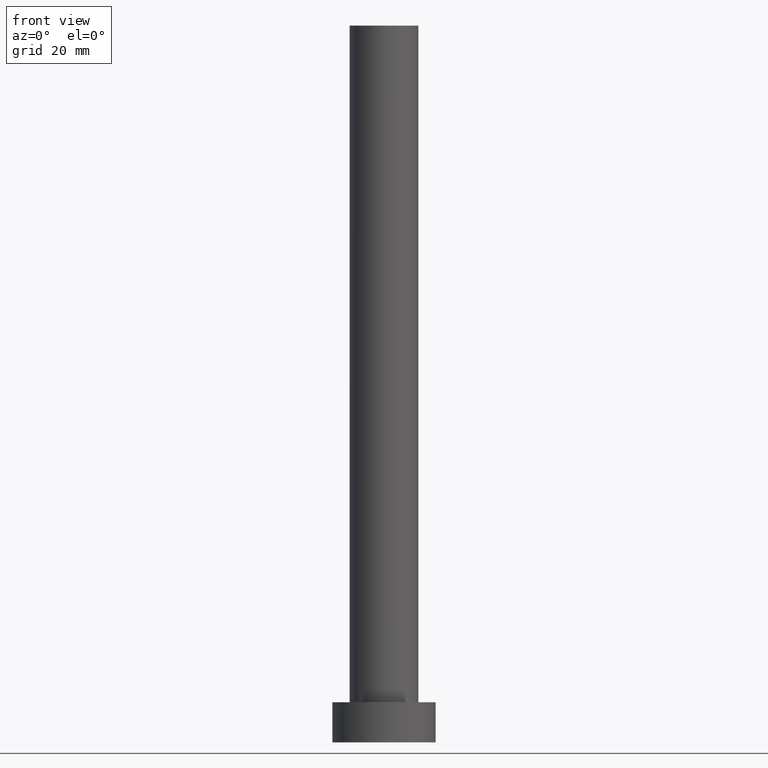
[diagram: clean part render]
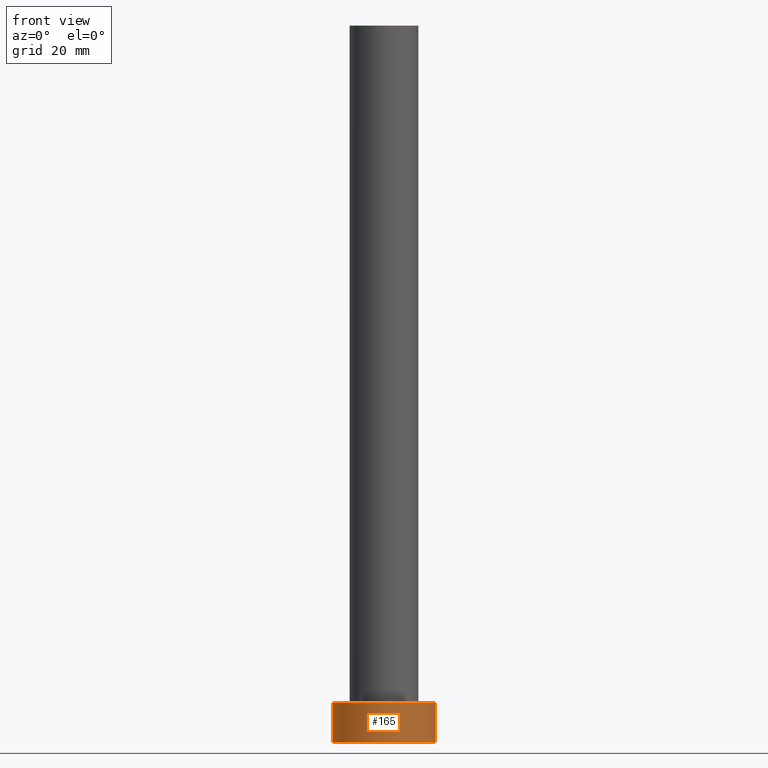
[diagram: same view with one face highlighted and labeled with its STEP entity id]
A machine part, front view. The second image highlights one B-rep face of the part: STEP entity #165.
In plain terms, the highlighted cylindrical surface (partial cylindrical patch) has radius 9 mm, axis along (-0, -0, -1).
Its self-contained STEP definition (entity closure, byte-faithful):
#2 = VECTOR ( 'NONE', #173, 1000.000000000000000 ) ;
#9 = CIRCLE ( 'NONE', #166, 9.000000000000000000 ) ;
#20 = EDGE_CURVE ( 'NONE', #178, #77, #9, .T. ) ;
#29 = CIRCLE ( 'NONE', #78, 9.000000000000000000 ) ;
#41 = CARTESIAN_POINT ( 'NONE',  ( -9.000000000000000000, 0.000000000000000000, 0.000000000000000000 ) ) ;
#52 = CARTESIAN_POINT ( 'NONE',  ( -9.000000000000000000, 0.000000000000000000, 7.000000000000000000 ) ) ;
#60 = VERTEX_POINT ( 'NONE', #111 ) ;
#62 = ORIENTED_EDGE ( 'NONE', *, *, #103, .T. ) ;
#70 = CARTESIAN_POINT ( 'NONE',  ( 0.000000000000000000, 0.000000000000000000, 7.000000000000000000 ) ) ;
#71 = LINE ( 'NONE', #247, #217 ) ;
#77 = VERTEX_POINT ( 'NONE', #170 ) ;
#78 = AXIS2_PLACEMENT_3D ( 'NONE', #101, #95, #219 ) ;
#80 = EDGE_CURVE ( 'NONE', #77, #60, #212, .T. ) ;
#82 = EDGE_LOOP ( 'NONE', ( #200, #183, #62, #249 ) ) ;
#87 = CARTESIAN_POINT ( 'NONE',  ( 0.000000000000000000, 0.000000000000000000, 7.000000000000000000 ) ) ;
#95 = DIRECTION ( 'NONE',  ( 0.000000000000000000, 0.000000000000000000, 1.000000000000000000 ) ) ;
#101 = CARTESIAN_POINT ( 'NONE',  ( 0.000000000000000000, 0.000000000000000000, 0.000000000000000000 ) ) ;
#103 = EDGE_CURVE ( 'NONE', #178, #254, #71, .T. ) ;
#107 = CYLINDRICAL_SURFACE ( 'NONE', #115, 9.000000000000000000 ) ;
#111 = CARTESIAN_POINT ( 'NONE',  ( 9.000000000000000000, 1.102182119232617714E-15, 0.000000000000000000 ) ) ;
#115 = AXIS2_PLACEMENT_3D ( 'NONE', #70, #145, #231 ) ;
#117 = DIRECTION ( 'NONE',  ( 0.000000000000000000, 0.000000000000000000, 1.000000000000000000 ) ) ;
#139 = DIRECTION ( 'NONE',  ( 1.000000000000000000, 0.000000000000000000, 0.000000000000000000 ) ) ;
#145 = DIRECTION ( 'NONE',  ( -0.000000000000000000, -0.000000000000000000, -1.000000000000000000 ) ) ;
#147 = DIRECTION ( 'NONE',  ( -0.000000000000000000, -0.000000000000000000, -1.000000000000000000 ) ) ;
#165 = ADVANCED_FACE ( 'NONE', ( #235 ), #107, .T. ) ;
#166 = AXIS2_PLACEMENT_3D ( 'NONE', #87, #117, #139 ) ;
#170 = CARTESIAN_POINT ( 'NONE',  ( 9.000000000000000000, 1.102182119232617714E-15, 7.000000000000000000 ) ) ;
#173 = DIRECTION ( 'NONE',  ( -0.000000000000000000, -0.000000000000000000, -1.000000000000000000 ) ) ;
#178 = VERTEX_POINT ( 'NONE', #52 ) ;
#183 = ORIENTED_EDGE ( 'NONE', *, *, #20, .F. ) ;
#200 = ORIENTED_EDGE ( 'NONE', *, *, #80, .F. ) ;
#212 = LINE ( 'NONE', #218, #2 ) ;
#215 = EDGE_CURVE ( 'NONE', #254, #60, #29, .T. ) ;
#217 = VECTOR ( 'NONE', #147, 1000.000000000000000 ) ;
#218 = CARTESIAN_POINT ( 'NONE',  ( 9.000000000000000000, 1.102182119232617714E-15, 7.000000000000000000 ) ) ;
#219 = DIRECTION ( 'NONE',  ( 1.000000000000000000, 0.000000000000000000, 0.000000000000000000 ) ) ;
#231 = DIRECTION ( 'NONE',  ( -1.000000000000000000, 0.000000000000000000, 0.000000000000000000 ) ) ;
#235 = FACE_OUTER_BOUND ( 'NONE', #82, .T. ) ;
#247 = CARTESIAN_POINT ( 'NONE',  ( -9.000000000000000000, 0.000000000000000000, 7.000000000000000000 ) ) ;
#249 = ORIENTED_EDGE ( 'NONE', *, *, #215, .T. ) ;
#254 = VERTEX_POINT ( 'NONE', #41 ) ;